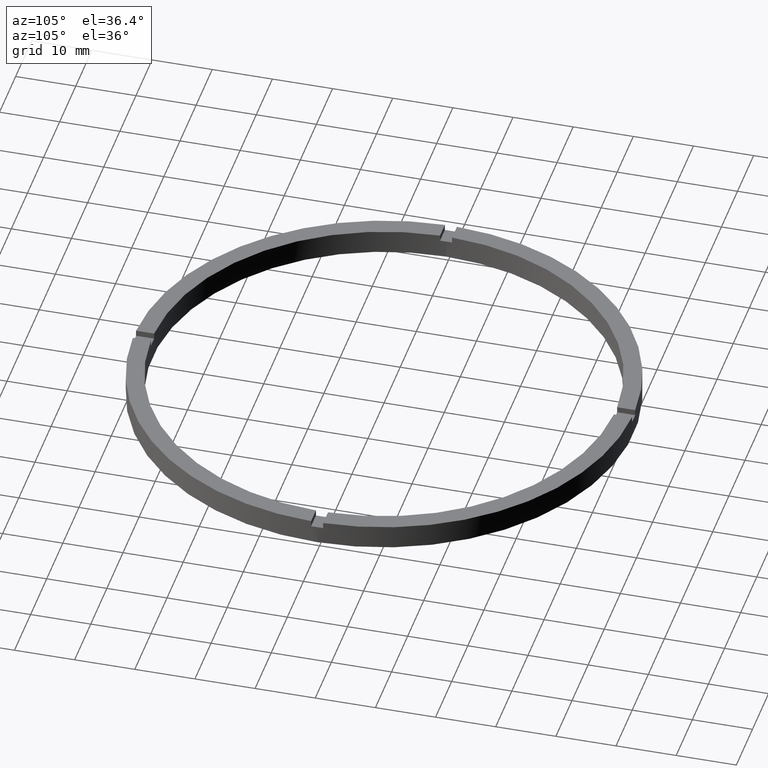
[diagram: clean part render]
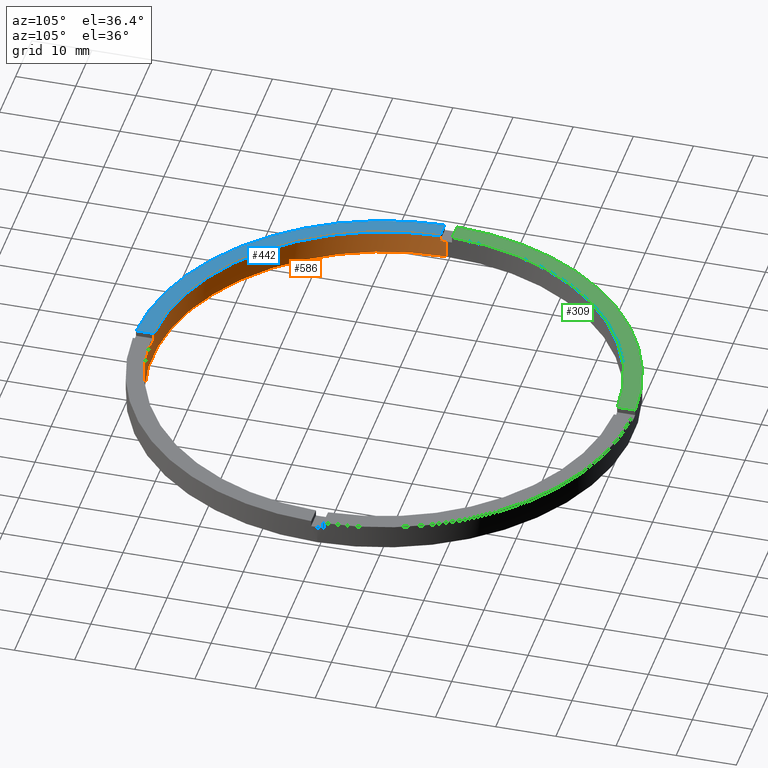
[diagram: same view with three faces highlighted in distinct colors, each labeled with its STEP entity id]
A machine part, auxiliary view with three faces highlighted in distinct colors.
Their STEP definitions:

[orange] entity #586 — the highlighted cylindrical surface (partial cylindrical patch) has radius 38.5 mm, axis along (-0, -0, -1).
#1 = DIRECTION ( 'NONE',  ( 1.000000000000000000, 0.000000000000000000, 0.000000000000000000 ) ) ;
#4 = CARTESIAN_POINT ( 'NONE',  ( 0.9999999999998406830, -38.48701079585163853, 4.000000000000000000 ) ) ;
#9 = CARTESIAN_POINT ( 'NONE',  ( 38.48701079585163143, -1.000000000000156763, 4.000000000000000000 ) ) ;
#21 = DIRECTION ( 'NONE',  ( 0.000000000000000000, 0.000000000000000000, 1.000000000000000000 ) ) ;
#23 = ORIENTED_EDGE ( 'NONE', *, *, #257, .T. ) ;
#24 = ORIENTED_EDGE ( 'NONE', *, *, #435, .T. ) ;
#27 = ORIENTED_EDGE ( 'NONE', *, *, #33, .T. ) ;
#33 = EDGE_CURVE ( 'NONE', #100, #377, #198, .T. ) ;
#36 = DIRECTION ( 'NONE',  ( -0.000000000000000000, -0.000000000000000000, -1.000000000000000000 ) ) ;
#40 = CARTESIAN_POINT ( 'NONE',  ( 0.000000000000000000, 0.000000000000000000, 3.000000000000000000 ) ) ;
#42 = CARTESIAN_POINT ( 'NONE',  ( 0.9999999999998406830, -38.48701079585163853, 4.000000000000000000 ) ) ;
#47 = CARTESIAN_POINT ( 'NONE',  ( 38.50000000000000000, 4.714890176717309515E-15, 3.000000000000000000 ) ) ;
#52 = VECTOR ( 'NONE', #738, 1000.000000000000000 ) ;
#59 = FACE_OUTER_BOUND ( 'NONE', #90, .T. ) ;
#60 = AXIS2_PLACEMENT_3D ( 'NONE', #771, #284, #421 ) ;
#61 = CYLINDRICAL_SURFACE ( 'NONE', #628, 38.50000000000000000 ) ;
#64 = VECTOR ( 'NONE', #565, 1000.000000000000000 ) ;
#66 = CIRCLE ( 'NONE', #534, 38.50000000000000000 ) ;
#73 = DIRECTION ( 'NONE',  ( 1.000000000000000000, 0.000000000000000000, 0.000000000000000000 ) ) ;
#81 = CARTESIAN_POINT ( 'NONE',  ( 0.000000000000000000, 0.000000000000000000, 3.000000000000000000 ) ) ;
#90 = EDGE_LOOP ( 'NONE', ( #24, #393, #150, #130, #432, #563, #386, #388, #23, #426, #27, #131 ) ) ;
#92 = DIRECTION ( 'NONE',  ( 1.000000000000000000, 0.000000000000000000, 0.000000000000000000 ) ) ;
#94 = CARTESIAN_POINT ( 'NONE',  ( -1.000000000000159428, -38.48701079585163143, 4.000000000000000000 ) ) ;
#95 = VERTEX_POINT ( 'NONE', #537 ) ;
#96 = CIRCLE ( 'NONE', #60, 38.50000000000000000 ) ;
#100 = VERTEX_POINT ( 'NONE', #42 ) ;
#126 = DIRECTION ( 'NONE',  ( -1.000000000000000000, 0.000000000000000000, 0.000000000000000000 ) ) ;
#130 = ORIENTED_EDGE ( 'NONE', *, *, #741, .F. ) ;
#131 = ORIENTED_EDGE ( 'NONE', *, *, #726, .F. ) ;
#150 = ORIENTED_EDGE ( 'NONE', *, *, #459, .F. ) ;
#155 = DIRECTION ( 'NONE',  ( 0.000000000000000000, 0.000000000000000000, 1.000000000000000000 ) ) ;
#164 = AXIS2_PLACEMENT_3D ( 'NONE', #516, #21, #92 ) ;
#198 = CIRCLE ( 'NONE', #164, 38.50000000000000000 ) ;
#200 = CARTESIAN_POINT ( 'NONE',  ( -38.48701079585163143, -1.000000000000028422, 4.000000000000000000 ) ) ;
#201 = DIRECTION ( 'NONE',  ( 0.000000000000000000, 0.000000000000000000, 1.000000000000000000 ) ) ;
#207 = DIRECTION ( 'NONE',  ( -0.000000000000000000, -0.000000000000000000, -1.000000000000000000 ) ) ;
#217 = CIRCLE ( 'NONE', #520, 38.50000000000000000 ) ;
#257 = EDGE_CURVE ( 'NONE', #630, #629, #217, .T. ) ;
#281 = CARTESIAN_POINT ( 'NONE',  ( -1.000000000000159428, -38.48701079585163143, 4.000000000000000000 ) ) ;
#282 = CARTESIAN_POINT ( 'NONE',  ( -38.50000000000000000, 0.000000000000000000, 4.000000000000000000 ) ) ;
#284 = DIRECTION ( 'NONE',  ( 0.000000000000000000, 0.000000000000000000, 1.000000000000000000 ) ) ;
#299 = DIRECTION ( 'NONE',  ( 0.000000000000000000, 0.000000000000000000, 1.000000000000000000 ) ) ;
#300 = CARTESIAN_POINT ( 'NONE',  ( 0.000000000000000000, 0.000000000000000000, 4.000000000000000000 ) ) ;
#302 = EDGE_CURVE ( 'NONE', #623, #425, #495, .T. ) ;
#314 = VECTOR ( 'NONE', #423, 1000.000000000000000 ) ;
#319 = LINE ( 'NONE', #281, #314 ) ;
#320 = LINE ( 'NONE', #282, #604 ) ;
#325 = VECTOR ( 'NONE', #632, 1000.000000000000000 ) ;
#335 = CARTESIAN_POINT ( 'NONE',  ( 0.9999999999998406830, -38.48701079585163853, 3.000000000000000000 ) ) ;
#336 = EDGE_CURVE ( 'NONE', #100, #629, #608, .T. ) ;
#348 = VERTEX_POINT ( 'NONE', #47 ) ;
#377 = VERTEX_POINT ( 'NONE', #9 ) ;
#386 = ORIENTED_EDGE ( 'NONE', *, *, #302, .T. ) ;
#387 = VERTEX_POINT ( 'NONE', #705 ) ;
#388 = ORIENTED_EDGE ( 'NONE', *, *, #467, .F. ) ;
#393 = ORIENTED_EDGE ( 'NONE', *, *, #556, .T. ) ;
#394 = AXIS2_PLACEMENT_3D ( 'NONE', #40, #201, #1 ) ;
#421 = DIRECTION ( 'NONE',  ( 1.000000000000000000, 0.000000000000000000, 0.000000000000000000 ) ) ;
#423 = DIRECTION ( 'NONE',  ( 0.000000000000000000, 0.000000000000000000, 1.000000000000000000 ) ) ;
#425 = VERTEX_POINT ( 'NONE', #94 ) ;
#426 = ORIENTED_EDGE ( 'NONE', *, *, #336, .F. ) ;
#427 = CARTESIAN_POINT ( 'NONE',  ( -38.50000000000000000, 0.000000000000000000, 3.000000000000000000 ) ) ;
#432 = ORIENTED_EDGE ( 'NONE', *, *, #564, .T. ) ;
#435 = EDGE_CURVE ( 'NONE', #480, #348, #96, .T. ) ;
#443 = DIRECTION ( 'NONE',  ( -0.000000000000000000, -0.000000000000000000, -1.000000000000000000 ) ) ;
#456 = EDGE_CURVE ( 'NONE', #623, #710, #600, .T. ) ;
#459 = EDGE_CURVE ( 'NONE', #387, #95, #66, .T. ) ;
#467 = EDGE_CURVE ( 'NONE', #630, #425, #319, .T. ) ;
#480 = VERTEX_POINT ( 'NONE', #712 ) ;
#495 = CIRCLE ( 'NONE', #611, 38.50000000000000000 ) ;
#498 = CARTESIAN_POINT ( 'NONE',  ( -1.000000000000159428, -38.48701079585163143, 3.000000000000000000 ) ) ;
#511 = DIRECTION ( 'NONE',  ( 1.000000000000000000, 0.000000000000000000, 0.000000000000000000 ) ) ;
#516 = CARTESIAN_POINT ( 'NONE',  ( 0.000000000000000000, 0.000000000000000000, 4.000000000000000000 ) ) ;
#520 = AXIS2_PLACEMENT_3D ( 'NONE', #81, #766, #73 ) ;
#526 = CARTESIAN_POINT ( 'NONE',  ( 38.48701079585163143, -1.000000000000156763, 4.000000000000000000 ) ) ;
#534 = AXIS2_PLACEMENT_3D ( 'NONE', #768, #299, #511 ) ;
#537 = CARTESIAN_POINT ( 'NONE',  ( 38.50000000000000000, 4.714890176717309515E-15, 0.000000000000000000 ) ) ;
#556 = EDGE_CURVE ( 'NONE', #348, #95, #591, .T. ) ;
#559 = CARTESIAN_POINT ( 'NONE',  ( -38.48701079585163143, -1.000000000000028422, 4.000000000000000000 ) ) ;
#563 = ORIENTED_EDGE ( 'NONE', *, *, #456, .F. ) ;
#564 = EDGE_CURVE ( 'NONE', #634, #710, #589, .T. ) ;
#565 = DIRECTION ( 'NONE',  ( -0.000000000000000000, -0.000000000000000000, -1.000000000000000000 ) ) ;
#568 = CARTESIAN_POINT ( 'NONE',  ( -38.48701079585163143, -1.000000000000028422, 3.000000000000000000 ) ) ;
#576 = LINE ( 'NONE', #526, #325 ) ;
#586 = ADVANCED_FACE ( 'NONE', ( #59 ), #61, .F. ) ;
#589 = CIRCLE ( 'NONE', #394, 38.50000000000000000 ) ;
#591 = LINE ( 'NONE', #602, #52 ) ;
#600 = LINE ( 'NONE', #200, #64 ) ;
#602 = CARTESIAN_POINT ( 'NONE',  ( 38.50000000000000000, 4.714890176717309515E-15, 4.000000000000000000 ) ) ;
#604 = VECTOR ( 'NONE', #36, 1000.000000000000000 ) ;
#607 = VECTOR ( 'NONE', #207, 1000.000000000000000 ) ;
#608 = LINE ( 'NONE', #4, #607 ) ;
#611 = AXIS2_PLACEMENT_3D ( 'NONE', #690, #155, #694 ) ;
#623 = VERTEX_POINT ( 'NONE', #559 ) ;
#628 = AXIS2_PLACEMENT_3D ( 'NONE', #300, #443, #126 ) ;
#629 = VERTEX_POINT ( 'NONE', #335 ) ;
#630 = VERTEX_POINT ( 'NONE', #498 ) ;
#632 = DIRECTION ( 'NONE',  ( 0.000000000000000000, 0.000000000000000000, 1.000000000000000000 ) ) ;
#634 = VERTEX_POINT ( 'NONE', #427 ) ;
#690 = CARTESIAN_POINT ( 'NONE',  ( 0.000000000000000000, 0.000000000000000000, 4.000000000000000000 ) ) ;
#694 = DIRECTION ( 'NONE',  ( 1.000000000000000000, 0.000000000000000000, 0.000000000000000000 ) ) ;
#705 = CARTESIAN_POINT ( 'NONE',  ( -38.50000000000000000, 0.000000000000000000, 0.000000000000000000 ) ) ;
#710 = VERTEX_POINT ( 'NONE', #568 ) ;
#712 = CARTESIAN_POINT ( 'NONE',  ( 38.48701079585163143, -1.000000000000156763, 3.000000000000000000 ) ) ;
#726 = EDGE_CURVE ( 'NONE', #480, #377, #576, .T. ) ;
#738 = DIRECTION ( 'NONE',  ( -0.000000000000000000, -0.000000000000000000, -1.000000000000000000 ) ) ;
#741 = EDGE_CURVE ( 'NONE', #634, #387, #320, .T. ) ;
#766 = DIRECTION ( 'NONE',  ( -0.000000000000000000, 0.000000000000000000, 1.000000000000000000 ) ) ;
#768 = CARTESIAN_POINT ( 'NONE',  ( 0.000000000000000000, 0.000000000000000000, 0.000000000000000000 ) ) ;
#771 = CARTESIAN_POINT ( 'NONE',  ( 0.000000000000000000, 0.000000000000000000, 3.000000000000000000 ) ) ;

[blue] entity #442 — the highlighted planar face has unit normal (0, 0, 1).
#3 = CARTESIAN_POINT ( 'NONE',  ( -41.48795005781799716, -1.000000000000028866, 4.000000000000000000 ) ) ;
#34 = DIRECTION ( 'NONE',  ( 1.000000000000000000, 0.000000000000000000, -0.000000000000000000 ) ) ;
#75 = VERTEX_POINT ( 'NONE', #3 ) ;
#78 = FACE_OUTER_BOUND ( 'NONE', #86, .T. ) ;
#86 = EDGE_LOOP ( 'NONE', ( #740, #385, #660, #708 ) ) ;
#94 = CARTESIAN_POINT ( 'NONE',  ( -1.000000000000159428, -38.48701079585163143, 4.000000000000000000 ) ) ;
#112 = CARTESIAN_POINT ( 'NONE',  ( -1.000000000000160316, -31.50000000000018119, 4.000000000000000000 ) ) ;
#128 = EDGE_CURVE ( 'NONE', #425, #357, #735, .T. ) ;
#155 = DIRECTION ( 'NONE',  ( 0.000000000000000000, 0.000000000000000000, 1.000000000000000000 ) ) ;
#209 = EDGE_CURVE ( 'NONE', #75, #357, #719, .T. ) ;
#220 = EDGE_CURVE ( 'NONE', #75, #623, #724, .T. ) ;
#276 = CARTESIAN_POINT ( 'NONE',  ( -31.50000000000018829, -1.000000000000026867, 4.000000000000000000 ) ) ;
#279 = CARTESIAN_POINT ( 'NONE',  ( 0.000000000000000000, 0.000000000000000000, 4.000000000000000000 ) ) ;
#302 = EDGE_CURVE ( 'NONE', #623, #425, #495, .T. ) ;
#317 = DIRECTION ( 'NONE',  ( 0.000000000000000000, 0.000000000000000000, 1.000000000000000000 ) ) ;
#357 = VERTEX_POINT ( 'NONE', #609 ) ;
#385 = ORIENTED_EDGE ( 'NONE', *, *, #302, .F. ) ;
#425 = VERTEX_POINT ( 'NONE', #94 ) ;
#442 = ADVANCED_FACE ( 'NONE', ( #78 ), #729, .T. ) ;
#462 = DIRECTION ( 'NONE',  ( 1.000000000000000000, 0.000000000000000000, 0.000000000000000000 ) ) ;
#495 = CIRCLE ( 'NONE', #611, 38.50000000000000000 ) ;
#524 = DIRECTION ( 'NONE',  ( 1.000000000000000000, 1.951563910473907735E-16, -0.000000000000000000 ) ) ;
#545 = DIRECTION ( 'NONE',  ( 0.000000000000000000, 0.000000000000000000, 1.000000000000000000 ) ) ;
#558 = CARTESIAN_POINT ( 'NONE',  ( 0.000000000000000000, 0.000000000000000000, 4.000000000000000000 ) ) ;
#559 = CARTESIAN_POINT ( 'NONE',  ( -38.48701079585163143, -1.000000000000028422, 4.000000000000000000 ) ) ;
#609 = CARTESIAN_POINT ( 'NONE',  ( -1.000000000000158984, -41.48795005781799006, 4.000000000000000000 ) ) ;
#611 = AXIS2_PLACEMENT_3D ( 'NONE', #690, #155, #694 ) ;
#623 = VERTEX_POINT ( 'NONE', #559 ) ;
#660 = ORIENTED_EDGE ( 'NONE', *, *, #220, .F. ) ;
#690 = CARTESIAN_POINT ( 'NONE',  ( 0.000000000000000000, 0.000000000000000000, 4.000000000000000000 ) ) ;
#692 = AXIS2_PLACEMENT_3D ( 'NONE', #558, #317, #462 ) ;
#694 = DIRECTION ( 'NONE',  ( 1.000000000000000000, 0.000000000000000000, 0.000000000000000000 ) ) ;
#704 = VECTOR ( 'NONE', #524, 1000.000000000000000 ) ;
#708 = ORIENTED_EDGE ( 'NONE', *, *, #209, .T. ) ;
#713 = AXIS2_PLACEMENT_3D ( 'NONE', #279, #545, #34 ) ;
#714 = VECTOR ( 'NONE', #775, 1000.000000000000000 ) ;
#719 = CIRCLE ( 'NONE', #692, 41.50000000000000000 ) ;
#724 = LINE ( 'NONE', #276, #704 ) ;
#729 = PLANE ( 'NONE',  #713 ) ;
#735 = LINE ( 'NONE', #112, #714 ) ;
#740 = ORIENTED_EDGE ( 'NONE', *, *, #128, .F. ) ;
#775 = DIRECTION ( 'NONE',  ( 1.301042606982605074E-16, -1.000000000000000000, 0.000000000000000000 ) ) ;

[green] entity #309 — the highlighted planar face has unit normal (0, 0, 1).
#18 = AXIS2_PLACEMENT_3D ( 'NONE', #681, #366, #49 ) ;
#49 = DIRECTION ( 'NONE',  ( 1.000000000000000000, 0.000000000000000000, 0.000000000000000000 ) ) ;
#67 = CIRCLE ( 'NONE', #728, 41.50000000000000000 ) ;
#82 = VECTOR ( 'NONE', #639, 1000.000000000000000 ) ;
#104 = VERTEX_POINT ( 'NONE', #657 ) ;
#145 = VERTEX_POINT ( 'NONE', #285 ) ;
#151 = ORIENTED_EDGE ( 'NONE', *, *, #700, .T. ) ;
#175 = VERTEX_POINT ( 'NONE', #384 ) ;
#179 = EDGE_CURVE ( 'NONE', #202, #104, #465, .T. ) ;
#202 = VERTEX_POINT ( 'NONE', #518 ) ;
#203 = DIRECTION ( 'NONE',  ( 0.000000000000000000, 0.000000000000000000, 1.000000000000000000 ) ) ;
#214 = CARTESIAN_POINT ( 'NONE',  ( -1.000000000000025757, 31.50000000000000000, 4.000000000000000000 ) ) ;
#285 = CARTESIAN_POINT ( 'NONE',  ( -1.000000000000025757, 38.48701079585163143, 4.000000000000000000 ) ) ;
#309 = ADVANCED_FACE ( 'NONE', ( #492 ), #547, .T. ) ;
#338 = LINE ( 'NONE', #214, #82 ) ;
#341 = DIRECTION ( 'NONE',  ( 0.000000000000000000, 0.000000000000000000, 1.000000000000000000 ) ) ;
#366 = DIRECTION ( 'NONE',  ( 0.000000000000000000, 0.000000000000000000, 1.000000000000000000 ) ) ;
#381 = EDGE_CURVE ( 'NONE', #175, #145, #338, .T. ) ;
#384 = CARTESIAN_POINT ( 'NONE',  ( -1.000000000000025757, 41.48795005781799716, 4.000000000000000000 ) ) ;
#400 = ORIENTED_EDGE ( 'NONE', *, *, #381, .F. ) ;
#402 = EDGE_LOOP ( 'NONE', ( #400, #151, #458, #643 ) ) ;
#444 = DIRECTION ( 'NONE',  ( 1.000000000000000000, 0.000000000000000000, -0.000000000000000000 ) ) ;
#450 = DIRECTION ( 'NONE',  ( -1.000000000000000000, -1.951563910473907735E-16, 0.000000000000000000 ) ) ;
#458 = ORIENTED_EDGE ( 'NONE', *, *, #179, .F. ) ;
#465 = LINE ( 'NONE', #691, #468 ) ;
#468 = VECTOR ( 'NONE', #450, 1000.000000000000000 ) ;
#492 = FACE_OUTER_BOUND ( 'NONE', #402, .T. ) ;
#518 = CARTESIAN_POINT ( 'NONE',  ( -38.48701079585163143, 0.9999999999999715783, 4.000000000000000000 ) ) ;
#547 = PLANE ( 'NONE',  #640 ) ;
#592 = CIRCLE ( 'NONE', #18, 38.50000000000000000 ) ;
#595 = EDGE_CURVE ( 'NONE', #145, #202, #592, .T. ) ;
#627 = CARTESIAN_POINT ( 'NONE',  ( 0.000000000000000000, 0.000000000000000000, 4.000000000000000000 ) ) ;
#639 = DIRECTION ( 'NONE',  ( -0.000000000000000000, -1.000000000000000000, -0.000000000000000000 ) ) ;
#640 = AXIS2_PLACEMENT_3D ( 'NONE', #672, #203, #444 ) ;
#643 = ORIENTED_EDGE ( 'NONE', *, *, #595, .F. ) ;
#657 = CARTESIAN_POINT ( 'NONE',  ( -41.48795005781799716, 0.9999999999999711342, 4.000000000000000000 ) ) ;
#672 = CARTESIAN_POINT ( 'NONE',  ( 0.000000000000000000, 0.000000000000000000, 4.000000000000000000 ) ) ;
#681 = CARTESIAN_POINT ( 'NONE',  ( 0.000000000000000000, 0.000000000000000000, 4.000000000000000000 ) ) ;
#691 = CARTESIAN_POINT ( 'NONE',  ( -31.50000000000018829, 0.9999999999999731326, 4.000000000000000000 ) ) ;
#700 = EDGE_CURVE ( 'NONE', #175, #104, #67, .T. ) ;
#706 = DIRECTION ( 'NONE',  ( 1.000000000000000000, 0.000000000000000000, 0.000000000000000000 ) ) ;
#728 = AXIS2_PLACEMENT_3D ( 'NONE', #627, #341, #706 ) ;